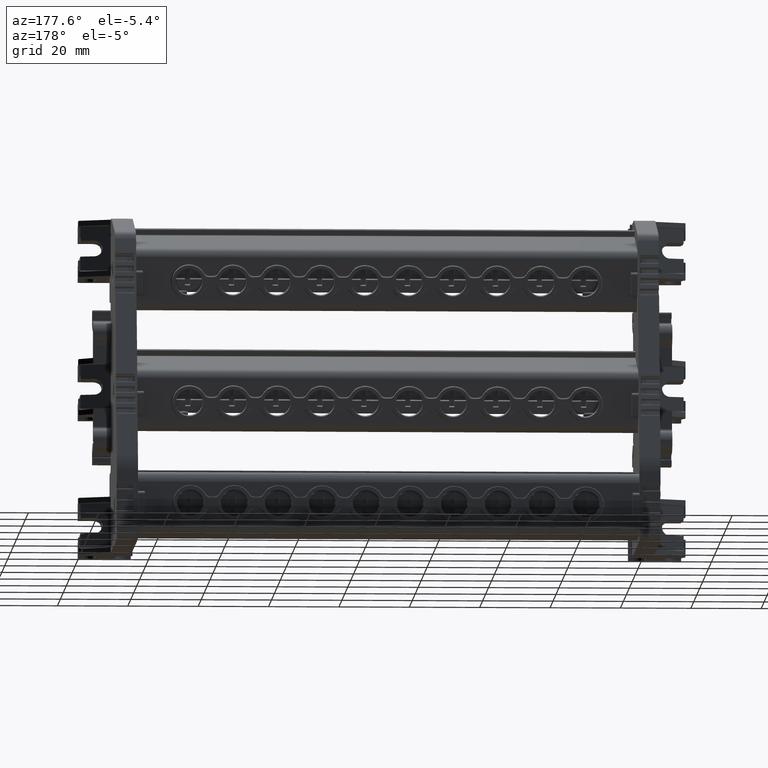
[diagram: clean part render]
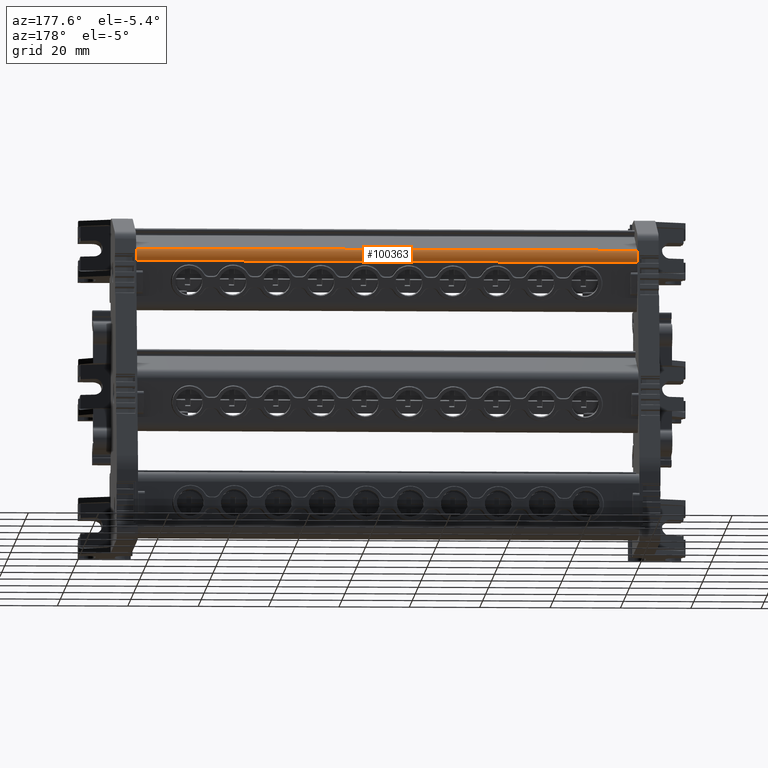
[diagram: same view with one face highlighted and labeled with its STEP entity id]
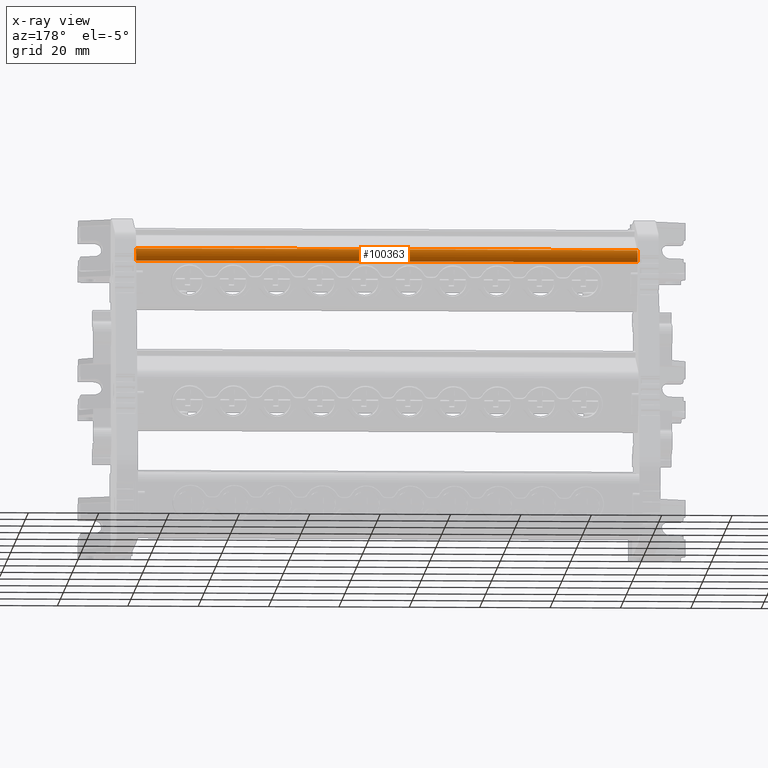
[diagram: x-ray of the same camera — body ghosted, the highlighted face saturated]
A machine part, auxiliary view. The second image highlights one B-rep face of the part: STEP entity #100363.
The next image is the same camera in x-ray: the body ghosted, the highlighted face saturated — about 0% of this face is hidden behind the body in this view.
In plain terms, the highlighted cylindrical surface (edge-blend (fillet) strip) has radius 3 mm, axis along (-1, 0, -0).
Its self-contained STEP definition (entity closure, byte-faithful):
#7277 = EDGE_CURVE ( 'NONE', #110816, #110778, #39983, .T. ) ;
#7860 = EDGE_CURVE ( 'NONE', #110778, #110945, #30797, .T. ) ;
#8125 = EDGE_CURVE ( 'NONE', #110816, #110993, #31060, .T. ) ;
#8130 = EDGE_CURVE ( 'NONE', #110945, #110993, #40122, .T. ) ;
#30778 = CARTESIAN_POINT ( 'NONE',  ( 12.17005696747480100, 276.5138420019188200, 36.32592446386289000 ) ) ;
#30784 = DIRECTION ( 'NONE',  ( -1.000000000000000000, 8.490997600938255900E-015, -5.655767068175815700E-015 ) ) ;
#30797 = LINE ( 'NONE', #30778, #40065 ) ;
#31060 = LINE ( 'NONE', #31086, #40151 ) ;
#31082 = DIRECTION ( 'NONE',  ( 1.000000000000000000, -8.490997600938255900E-015, 5.655767068175815700E-015 ) ) ;
#31085 = DIRECTION ( 'NONE',  ( -1.000000000000000000, -8.534381555384433800E-016, -2.976299410596451400E-015 ) ) ;
#31086 = CARTESIAN_POINT ( 'NONE',  ( 12.17005696747470200, 274.4429748293653700, 39.98616719198349800 ) ) ;
#31094 = DIRECTION ( 'NONE',  ( -9.251858538542962800E-015, -1.000000000000000000, 0.0000000000000000000 ) ) ;
#31098 = CARTESIAN_POINT ( 'NONE',  ( -98.30194303252659400, 273.6160645230527300, 37.10238159917046400 ) ) ;
#39983 = CIRCLE ( 'NONE', #39989, 3.000000000000002700 ) ;
#39989 = AXIS2_PLACEMENT_3D ( 'NONE', #114889, #114891, #114893 ) ;
#40065 = VECTOR ( 'NONE', #30784, 1000.000000000000000 ) ;
#40122 = CIRCLE ( 'NONE', #40124, 3.000000000000002700 ) ;
#40124 = AXIS2_PLACEMENT_3D ( 'NONE', #31098, #31082, #31094 ) ;
#40151 = VECTOR ( 'NONE', #31085, 1000.000000000000000 ) ;
#42226 = EDGE_LOOP ( 'NONE', ( #50067, #50059, #50092, #50110 ) ) ;
#50059 = ORIENTED_EDGE ( 'NONE', *, *, #8125, .F. ) ;
#50067 = ORIENTED_EDGE ( 'NONE', *, *, #8130, .T. ) ;
#50092 = ORIENTED_EDGE ( 'NONE', *, *, #7277, .T. ) ;
#50110 = ORIENTED_EDGE ( 'NONE', *, *, #7860, .T. ) ;
#55896 = AXIS2_PLACEMENT_3D ( 'NONE', #64528, #64564, #64577 ) ;
#64528 = CARTESIAN_POINT ( 'NONE',  ( 12.17005696747477300, 273.6160645230517600, 37.10238159917108900 ) ) ;
#64556 = CYLINDRICAL_SURFACE ( 'NONE', #55896, 3.000000000000002700 ) ;
#64557 = FACE_OUTER_BOUND ( 'NONE', #42226, .T. ) ;
#64564 = DIRECTION ( 'NONE',  ( -1.000000000000000000, 8.490997600938255900E-015, -5.655767068175815700E-015 ) ) ;
#64577 = DIRECTION ( 'NONE',  ( -8.673617379884027600E-015, -1.000000000000000000, 0.0000000000000000000 ) ) ;
#80972 = CARTESIAN_POINT ( 'NONE',  ( -98.30194303252665100, 274.4429748293659400, 39.98616719198297200 ) ) ;
#83445 = CARTESIAN_POINT ( 'NONE',  ( 44.19805696747486200, 276.5138420019185300, 36.32592446386311700 ) ) ;
#83490 = CARTESIAN_POINT ( 'NONE',  ( 44.19805696747480500, 274.4429748293653700, 39.98616719198358300 ) ) ;
#83731 = CARTESIAN_POINT ( 'NONE',  ( -98.30194303252663700, 276.5138420019197300, 36.32592446386231400 ) ) ;
#100363 = ADVANCED_FACE ( 'NONE', ( #64557 ), #64556, .T. ) ;
#110778 = VERTEX_POINT ( 'NONE', #83445 ) ;
#110816 = VERTEX_POINT ( 'NONE', #83490 ) ;
#110945 = VERTEX_POINT ( 'NONE', #83731 ) ;
#110993 = VERTEX_POINT ( 'NONE', #80972 ) ;
#114889 = CARTESIAN_POINT ( 'NONE',  ( 44.19805696747480500, 273.6160645230514800, 37.10238159917127400 ) ) ;
#114891 = DIRECTION ( 'NONE',  ( -1.000000000000000000, 8.490997600938255900E-015, -5.655767068175815700E-015 ) ) ;
#114893 = DIRECTION ( 'NONE',  ( -9.251858538542962800E-015, -1.000000000000000000, 0.0000000000000000000 ) ) ;